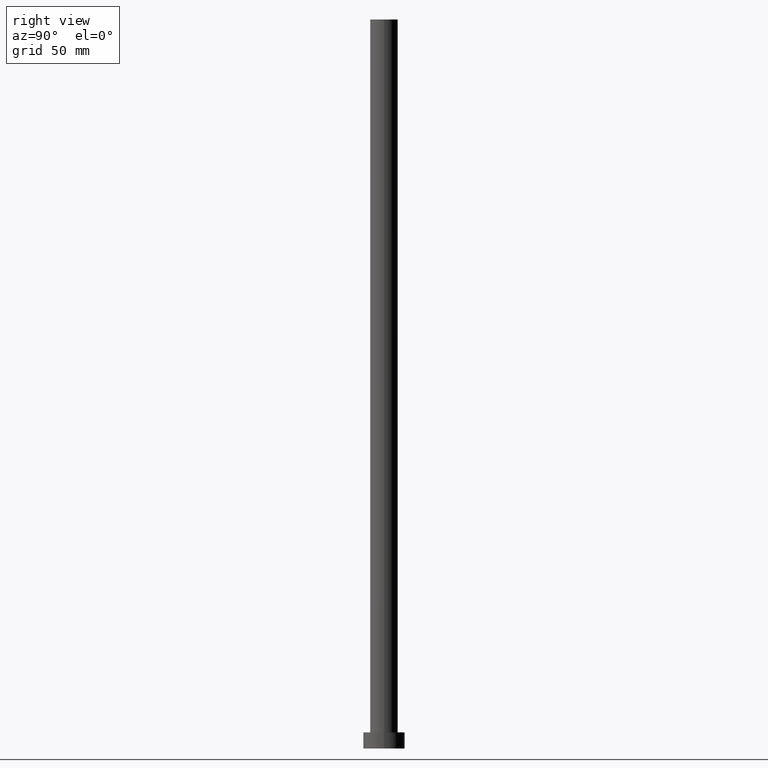
[diagram: clean part render]
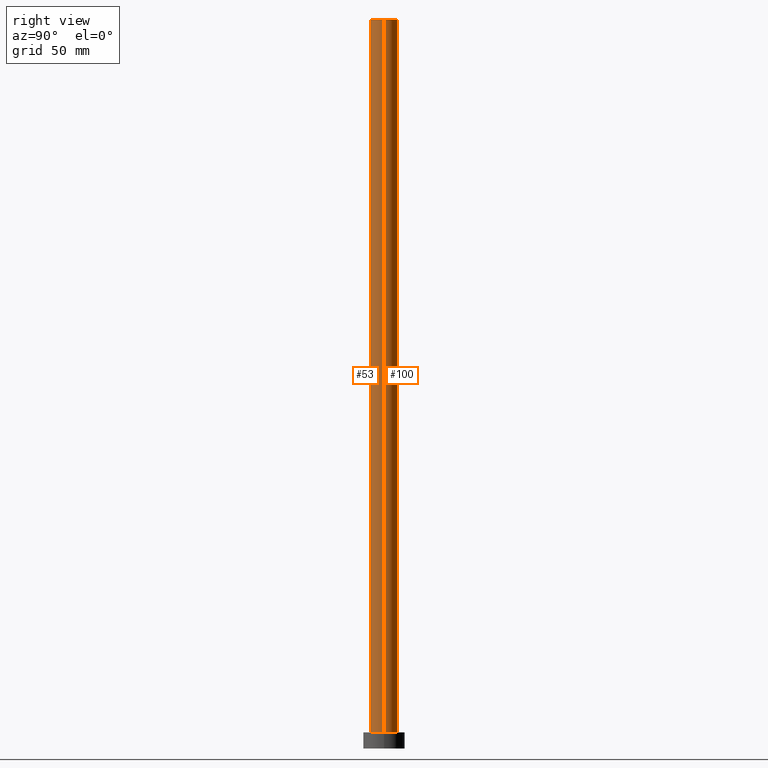
[diagram: same view with one multi-face feature highlighted, each face labeled with its STEP entity id]
A machine part, right view. The highlighted faces form ONE feature: a constant-radius fillet chain: 2 tangent blend faces with common blend radius 6 mm. The faces share edges in the B-rep.
Their STEP definitions:
[1] entity #53 (Cylinder):
#14 = AXIS2_PLACEMENT_3D ( 'NONE', #255, #104, #124 ) ;
#15 = LINE ( 'NONE', #228, #173 ) ;
#19 = DIRECTION ( 'NONE',  ( -0.000000000000000000, -0.000000000000000000, -1.000000000000000000 ) ) ;
#23 = CARTESIAN_POINT ( 'NONE',  ( -6.000000000000000888, 0.000000000000000000, 7.000000000000000000 ) ) ;
#24 = DIRECTION ( 'NONE',  ( 0.000000000000000000, 0.000000000000000000, 1.000000000000000000 ) ) ;
#26 = EDGE_CURVE ( 'NONE', #249, #130, #15, .T. ) ;
#30 = CARTESIAN_POINT ( 'NONE',  ( -6.000000000000000888, 0.000000000000000000, 315.0000000000000000 ) ) ;
#39 = ORIENTED_EDGE ( 'NONE', *, *, #74, .T. ) ;
#41 = DIRECTION ( 'NONE',  ( -0.000000000000000000, -0.000000000000000000, -1.000000000000000000 ) ) ;
#43 = CARTESIAN_POINT ( 'NONE',  ( 6.000000000000000888, 7.347880794884120722E-16, 7.000000000000000000 ) ) ;
#45 = DIRECTION ( 'NONE',  ( 1.000000000000000000, 0.000000000000000000, 0.000000000000000000 ) ) ;
#46 = CYLINDRICAL_SURFACE ( 'NONE', #14, 6.000000000000000888 ) ;
#53 = ADVANCED_FACE ( 'NONE', ( #192 ), #46, .T. ) ;
#55 = VECTOR ( 'NONE', #41, 1000.000000000000000 ) ;
#65 = DIRECTION ( 'NONE',  ( 0.000000000000000000, 0.000000000000000000, 1.000000000000000000 ) ) ;
#68 = LINE ( 'NONE', #208, #55 ) ;
#74 = EDGE_CURVE ( 'NONE', #198, #168, #68, .T. ) ;
#80 = EDGE_LOOP ( 'NONE', ( #204, #147, #39, #232 ) ) ;
#82 = AXIS2_PLACEMENT_3D ( 'NONE', #141, #65, #45 ) ;
#84 = CARTESIAN_POINT ( 'NONE',  ( 6.000000000000000888, 7.347880794884120722E-16, 315.0000000000000000 ) ) ;
#104 = DIRECTION ( 'NONE',  ( -0.000000000000000000, -0.000000000000000000, -1.000000000000000000 ) ) ;
#124 = DIRECTION ( 'NONE',  ( -1.000000000000000000, 0.000000000000000000, 0.000000000000000000 ) ) ;
#130 = VERTEX_POINT ( 'NONE', #43 ) ;
#137 = CARTESIAN_POINT ( 'NONE',  ( 0.000000000000000000, 0.000000000000000000, 315.0000000000000000 ) ) ;
#141 = CARTESIAN_POINT ( 'NONE',  ( 0.000000000000000000, 0.000000000000000000, 7.000000000000000000 ) ) ;
#147 = ORIENTED_EDGE ( 'NONE', *, *, #182, .F. ) ;
#168 = VERTEX_POINT ( 'NONE', #23 ) ;
#169 = CIRCLE ( 'NONE', #82, 6.000000000000000888 ) ;
#173 = VECTOR ( 'NONE', #19, 1000.000000000000000 ) ;
#182 = EDGE_CURVE ( 'NONE', #198, #249, #209, .T. ) ;
#192 = FACE_OUTER_BOUND ( 'NONE', #80, .T. ) ;
#195 = AXIS2_PLACEMENT_3D ( 'NONE', #137, #24, #235 ) ;
#198 = VERTEX_POINT ( 'NONE', #30 ) ;
#204 = ORIENTED_EDGE ( 'NONE', *, *, #26, .F. ) ;
#208 = CARTESIAN_POINT ( 'NONE',  ( -6.000000000000000888, 0.000000000000000000, 315.0000000000000000 ) ) ;
#209 = CIRCLE ( 'NONE', #195, 6.000000000000000888 ) ;
#228 = CARTESIAN_POINT ( 'NONE',  ( 6.000000000000000888, 7.347880794884120722E-16, 315.0000000000000000 ) ) ;
#232 = ORIENTED_EDGE ( 'NONE', *, *, #238, .T. ) ;
#235 = DIRECTION ( 'NONE',  ( 1.000000000000000000, 0.000000000000000000, 0.000000000000000000 ) ) ;
#238 = EDGE_CURVE ( 'NONE', #168, #130, #169, .T. ) ;
#249 = VERTEX_POINT ( 'NONE', #84 ) ;
#255 = CARTESIAN_POINT ( 'NONE',  ( 0.000000000000000000, 0.000000000000000000, 315.0000000000000000 ) ) ;
[2] entity #100 (Cylinder):
#3 = FACE_OUTER_BOUND ( 'NONE', #176, .T. ) ;
#12 = CIRCLE ( 'NONE', #189, 6.000000000000000888 ) ;
#15 = LINE ( 'NONE', #228, #173 ) ;
#19 = DIRECTION ( 'NONE',  ( -0.000000000000000000, -0.000000000000000000, -1.000000000000000000 ) ) ;
#23 = CARTESIAN_POINT ( 'NONE',  ( -6.000000000000000888, 0.000000000000000000, 7.000000000000000000 ) ) ;
#26 = EDGE_CURVE ( 'NONE', #249, #130, #15, .T. ) ;
#30 = CARTESIAN_POINT ( 'NONE',  ( -6.000000000000000888, 0.000000000000000000, 315.0000000000000000 ) ) ;
#31 = EDGE_CURVE ( 'NONE', #249, #198, #44, .T. ) ;
#41 = DIRECTION ( 'NONE',  ( -0.000000000000000000, -0.000000000000000000, -1.000000000000000000 ) ) ;
#43 = CARTESIAN_POINT ( 'NONE',  ( 6.000000000000000888, 7.347880794884120722E-16, 7.000000000000000000 ) ) ;
#44 = CIRCLE ( 'NONE', #128, 6.000000000000000888 ) ;
#49 = DIRECTION ( 'NONE',  ( 1.000000000000000000, 0.000000000000000000, 0.000000000000000000 ) ) ;
#50 = ORIENTED_EDGE ( 'NONE', *, *, #194, .T. ) ;
#51 = CYLINDRICAL_SURFACE ( 'NONE', #106, 6.000000000000000888 ) ;
#55 = VECTOR ( 'NONE', #41, 1000.000000000000000 ) ;
#63 = ORIENTED_EDGE ( 'NONE', *, *, #31, .F. ) ;
#68 = LINE ( 'NONE', #208, #55 ) ;
#74 = EDGE_CURVE ( 'NONE', #198, #168, #68, .T. ) ;
#84 = CARTESIAN_POINT ( 'NONE',  ( 6.000000000000000888, 7.347880794884120722E-16, 315.0000000000000000 ) ) ;
#98 = CARTESIAN_POINT ( 'NONE',  ( 0.000000000000000000, 0.000000000000000000, 315.0000000000000000 ) ) ;
#100 = ADVANCED_FACE ( 'NONE', ( #3 ), #51, .T. ) ;
#106 = AXIS2_PLACEMENT_3D ( 'NONE', #145, #225, #184 ) ;
#128 = AXIS2_PLACEMENT_3D ( 'NONE', #98, #188, #138 ) ;
#130 = VERTEX_POINT ( 'NONE', #43 ) ;
#138 = DIRECTION ( 'NONE',  ( 1.000000000000000000, 0.000000000000000000, 0.000000000000000000 ) ) ;
#145 = CARTESIAN_POINT ( 'NONE',  ( 0.000000000000000000, 0.000000000000000000, 315.0000000000000000 ) ) ;
#157 = CARTESIAN_POINT ( 'NONE',  ( 0.000000000000000000, 0.000000000000000000, 7.000000000000000000 ) ) ;
#161 = ORIENTED_EDGE ( 'NONE', *, *, #26, .T. ) ;
#164 = ORIENTED_EDGE ( 'NONE', *, *, #74, .F. ) ;
#168 = VERTEX_POINT ( 'NONE', #23 ) ;
#173 = VECTOR ( 'NONE', #19, 1000.000000000000000 ) ;
#176 = EDGE_LOOP ( 'NONE', ( #63, #161, #50, #164 ) ) ;
#184 = DIRECTION ( 'NONE',  ( -1.000000000000000000, 0.000000000000000000, 0.000000000000000000 ) ) ;
#188 = DIRECTION ( 'NONE',  ( 0.000000000000000000, 0.000000000000000000, 1.000000000000000000 ) ) ;
#189 = AXIS2_PLACEMENT_3D ( 'NONE', #157, #216, #49 ) ;
#194 = EDGE_CURVE ( 'NONE', #130, #168, #12, .T. ) ;
#198 = VERTEX_POINT ( 'NONE', #30 ) ;
#208 = CARTESIAN_POINT ( 'NONE',  ( -6.000000000000000888, 0.000000000000000000, 315.0000000000000000 ) ) ;
#216 = DIRECTION ( 'NONE',  ( 0.000000000000000000, 0.000000000000000000, 1.000000000000000000 ) ) ;
#225 = DIRECTION ( 'NONE',  ( -0.000000000000000000, -0.000000000000000000, -1.000000000000000000 ) ) ;
#228 = CARTESIAN_POINT ( 'NONE',  ( 6.000000000000000888, 7.347880794884120722E-16, 315.0000000000000000 ) ) ;
#249 = VERTEX_POINT ( 'NONE', #84 ) ;